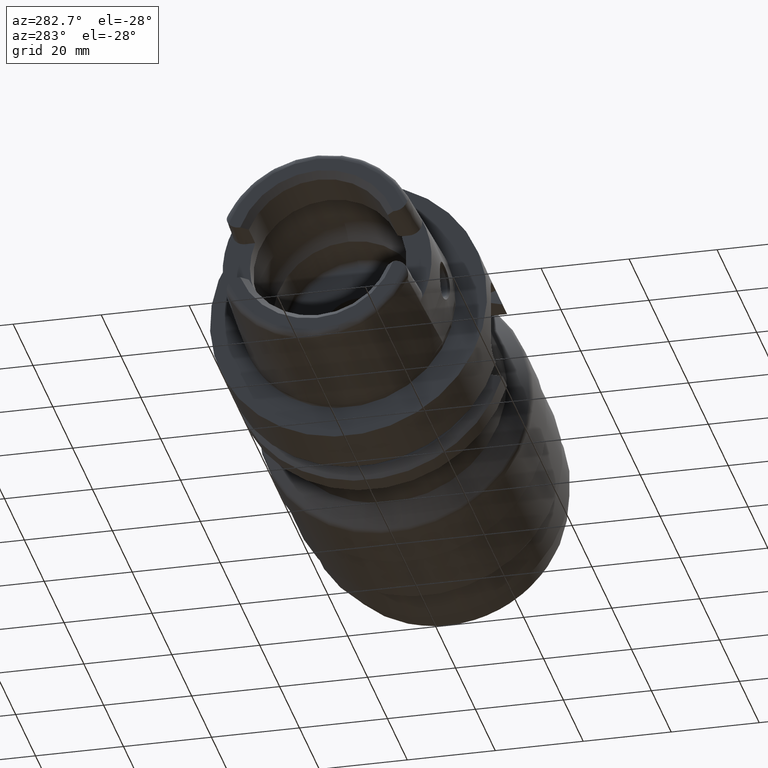
[diagram: clean part render]
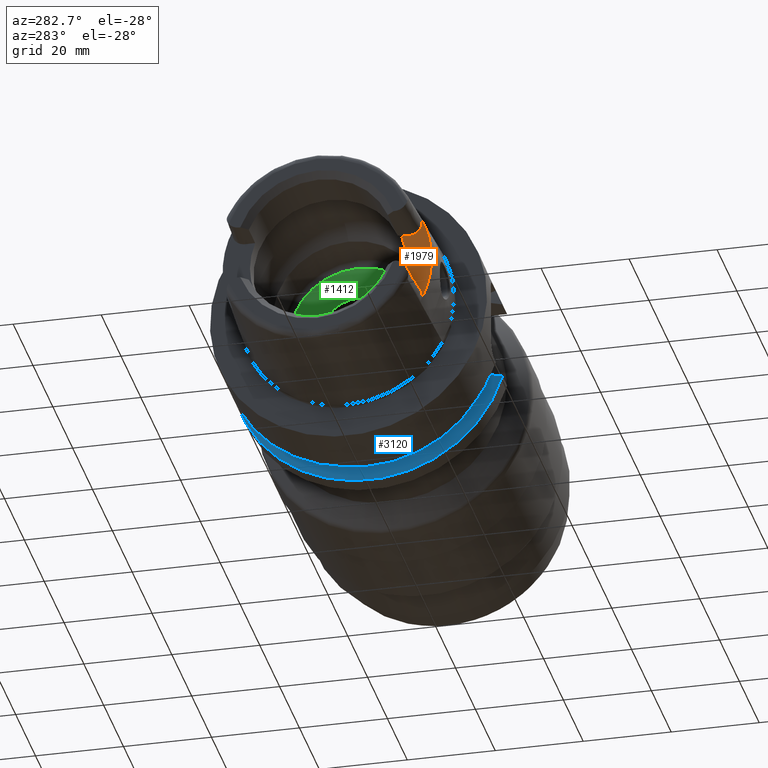
[diagram: same view with three faces highlighted in distinct colors, each labeled with its STEP entity id]
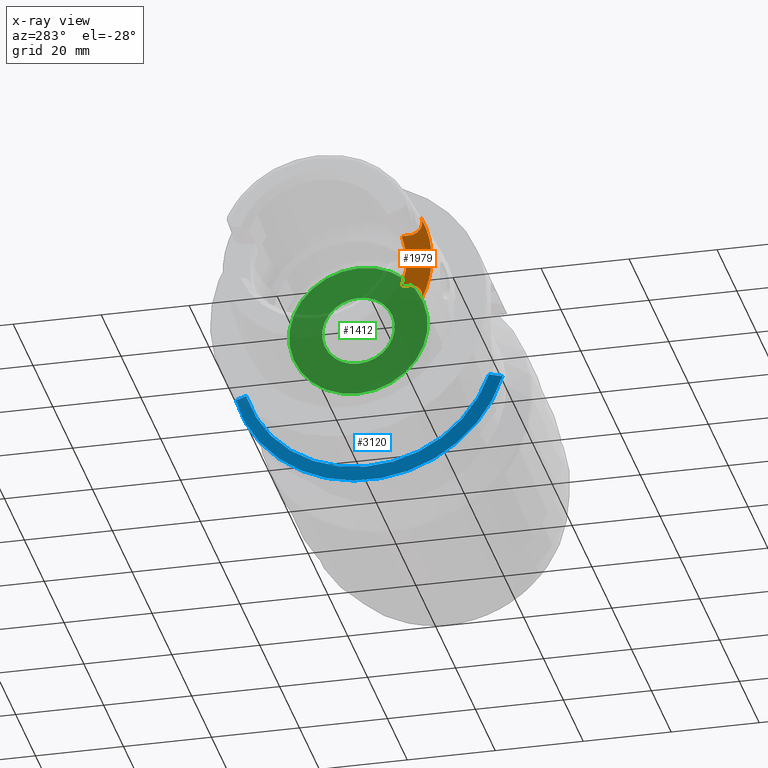
[diagram: x-ray of the same camera — body ghosted, the three highlighted faces saturated]
A machine part, auxiliary view with three faces highlighted in distinct colors.
The next image is the same camera in x-ray (body ghosted, the three faces saturated) — at least one of them is partly hidden behind the body in this view.
Their STEP definitions:

[orange] entity #1979 — the highlighted planar face has unit normal (-1, 0, 0).
#2 = AXIS2_PLACEMENT_3D ( 'NONE', #1925, #3089, #1618 ) ;
#40 = VECTOR ( 'NONE', #2176, 1000.000000000000000 ) ;
#59 = CARTESIAN_POINT ( 'NONE',  ( 12.00000000000000000, -18.36301340108916600, 6.269999999999999600 ) ) ;
#76 = CARTESIAN_POINT ( 'NONE',  ( 11.99999999999999800, -20.53071144832858200, -7.234431962286787000 ) ) ;
#86 = CARTESIAN_POINT ( 'NONE',  ( 12.00000000000000200, -19.55300159179155300, -6.515311287649342200 ) ) ;
#101 = CARTESIAN_POINT ( 'NONE',  ( 12.00000000000000400, -18.60939501637432500, 6.270000000000000500 ) ) ;
#341 = EDGE_CURVE ( 'NONE', #399, #3340, #3214, .T. ) ;
#388 = EDGE_CURVE ( 'NONE', #2680, #2763, #3370, .T. ) ;
#399 = VERTEX_POINT ( 'NONE', #3316 ) ;
#400 = CARTESIAN_POINT ( 'NONE',  ( 11.99999999999999800, -20.68413609072527100, 7.422551300769880500 ) ) ;
#410 = CARTESIAN_POINT ( 'NONE',  ( 11.99999999999999800, -21.23292727320523100, 8.772358841686422400 ) ) ;
#426 = CARTESIAN_POINT ( 'NONE',  ( 12.00000000000000200, -20.17780074119544800, -6.898224994547672600 ) ) ;
#485 = CARTESIAN_POINT ( 'NONE',  ( 12.00000000000000000, -16.58478030430917400, -6.269999999999999600 ) ) ;
#671 = CARTESIAN_POINT ( 'NONE',  ( 12.00000000000000200, -21.25573649662585800, 9.257612388113729600 ) ) ;
#688 = CARTESIAN_POINT ( 'NONE',  ( 12.00000000000000200, -21.23296973657176400, -8.772682089398991000 ) ) ;
#696 = VERTEX_POINT ( 'NONE', #485 ) ;
#699 = ORIENTED_EDGE ( 'NONE', *, *, #341, .T. ) ;
#831 = VERTEX_POINT ( 'NONE', #1784 ) ;
#903 = ORIENTED_EDGE ( 'NONE', *, *, #1464, .T. ) ;
#938 = CARTESIAN_POINT ( 'NONE',  ( 11.99999999999999800, -19.55259490983903700, 6.515125839770863800 ) ) ;
#948 = CARTESIAN_POINT ( 'NONE',  ( 12.00000000000000000, -18.36301340108916600, 6.269999999999999600 ) ) ;
#967 = CARTESIAN_POINT ( 'NONE',  ( 12.00000000000000000, -18.36301340108916600, -6.269999999999999600 ) ) ;
#984 = CARTESIAN_POINT ( 'NONE',  ( 12.00000000000000200, -20.94396221280171500, 7.840666298896443300 ) ) ;
#1145 = CARTESIAN_POINT ( 'NONE',  ( 12.00000000000000000, 0.0000000000000000000, 0.0000000000000000000 ) ) ;
#1248 = CARTESIAN_POINT ( 'NONE',  ( 11.99999999999999800, -18.60939450956534100, -6.269999999999999600 ) ) ;
#1272 = CARTESIAN_POINT ( 'NONE',  ( 12.00000000000000200, -19.32173134252615300, 6.422874775357647600 ) ) ;
#1438 = DIRECTION ( 'NONE',  ( 0.0000000000000000000, 0.0000000000000000000, 1.000000000000000000 ) ) ;
#1464 = EDGE_CURVE ( 'NONE', #2763, #399, #3393, .T. ) ;
#1489 = ORIENTED_EDGE ( 'NONE', *, *, #1801, .T. ) ;
#1518 = CARTESIAN_POINT ( 'NONE',  ( 12.00000000000000200, -20.68446546619762900, -7.422969488132082500 ) ) ;
#1545 = EDGE_CURVE ( 'NONE', #2680, #696, #1944, .T. ) ;
#1565 = CARTESIAN_POINT ( 'NONE',  ( 12.00000000000000400, -21.05561976531842900, -10.21183550163596900 ) ) ;
#1583 = CARTESIAN_POINT ( 'NONE',  ( 12.00000000000000200, -21.13518994756639600, -9.982258600522914800 ) ) ;
#1618 = DIRECTION ( 'NONE',  ( 0.0000000000000000000, 0.0000000000000000000, 1.000000000000000000 ) ) ;
#1719 = ORIENTED_EDGE ( 'NONE', *, *, #388, .T. ) ;
#1784 = CARTESIAN_POINT ( 'NONE',  ( 12.00000000000000000, -16.58478030430917400, 6.269999999999999600 ) ) ;
#1801 = EDGE_CURVE ( 'NONE', #831, #696, #2383, .T. ) ;
#1830 = AXIS2_PLACEMENT_3D ( 'NONE', #1145, #3176, #1438 ) ;
#1847 = CARTESIAN_POINT ( 'NONE',  ( 12.00000000000000200, -19.32247162561315100, -6.423106612030112600 ) ) ;
#1925 = CARTESIAN_POINT ( 'NONE',  ( 12.00000000000000000, 0.0000000000000000000, 0.0000000000000000000 ) ) ;
#1940 = FACE_OUTER_BOUND ( 'NONE', #3223, .T. ) ;
#1944 = LINE ( 'NONE', #2770, #40 ) ;
#1967 = DIRECTION ( 'NONE',  ( 0.0000000000000000000, 1.000000000000000000, 0.0000000000000000000 ) ) ;
#1979 = ADVANCED_FACE ( 'NONE', ( #1940 ), #3191, .T. ) ;
#2010 = EDGE_CURVE ( 'NONE', #3340, #831, #2988, .T. ) ;
#2105 = CARTESIAN_POINT ( 'NONE',  ( 12.00000000000000000, -18.36301340108916600, -6.269999999999999600 ) ) ;
#2142 = CARTESIAN_POINT ( 'NONE',  ( 12.00000000000000200, -21.23588942728140300, 9.505079572619866500 ) ) ;
#2148 = CARTESIAN_POINT ( 'NONE',  ( 12.00000000000000000, -20.94577213106061100, -10.43238370813136300 ) ) ;
#2172 = CARTESIAN_POINT ( 'NONE',  ( 11.99999999999999800, -21.25572429972871900, -9.257933813955691700 ) ) ;
#2176 = DIRECTION ( 'NONE',  ( 0.0000000000000000000, 1.000000000000000000, 0.0000000000000000000 ) ) ;
#2180 = DIRECTION ( 'NONE',  ( 0.0000000000000000000, 0.0000000000000000000, 1.000000000000000000 ) ) ;
#2206 = DIRECTION ( 'NONE',  ( 1.000000000000000000, -0.0000000000000000000, -0.0000000000000000000 ) ) ;
#2375 = CARTESIAN_POINT ( 'NONE',  ( 11.99999999999999800, -19.97765256619633700, -6.751187422122037600 ) ) ;
#2383 = CIRCLE ( 'NONE', #2399, 17.73042125112095500 ) ;
#2389 = CARTESIAN_POINT ( 'NONE',  ( 12.00000000000000200, -21.04513730628684000, -8.062609518537772900 ) ) ;
#2399 = AXIS2_PLACEMENT_3D ( 'NONE', #3632, #2206, #2180 ) ;
#2401 = CARTESIAN_POINT ( 'NONE',  ( 12.00000000000000200, -18.85033868554397800, 6.301009723774567000 ) ) ;
#2413 = CARTESIAN_POINT ( 'NONE',  ( 11.99999999999999800, -21.05562004604616900, 10.21183493800068500 ) ) ;
#2674 = CARTESIAN_POINT ( 'NONE',  ( 12.00000000000000200, -21.18990613798611000, 8.527671104674306300 ) ) ;
#2680 = VERTEX_POINT ( 'NONE', #2105 ) ;
#2711 = CARTESIAN_POINT ( 'NONE',  ( 11.99999999999999800, -21.04502711057990500, 8.062371556099122900 ) ) ;
#2763 = VERTEX_POINT ( 'NONE', #3323 ) ;
#2770 = CARTESIAN_POINT ( 'NONE',  ( 12.00000000000000000, 0.0000000000000000000, -6.269999999999999600 ) ) ;
#2785 = ORIENTED_EDGE ( 'NONE', *, *, #2010, .T. ) ;
#2804 = CARTESIAN_POINT ( 'NONE',  ( 12.00000000000000000, 0.0000000000000000000, 6.269999999999999600 ) ) ;
#2988 = LINE ( 'NONE', #2804, #3065 ) ;
#3005 = CARTESIAN_POINT ( 'NONE',  ( 12.00000000000000200, -20.53053151178566800, 7.234202413463278500 ) ) ;
#3065 = VECTOR ( 'NONE', #1967, 1000.000000000000000 ) ;
#3089 = DIRECTION ( 'NONE',  ( -1.000000000000000000, 0.0000000000000000000, 0.0000000000000000000 ) ) ;
#3176 = DIRECTION ( 'NONE',  ( -1.000000000000000000, 0.0000000000000000000, 0.0000000000000000000 ) ) ;
#3191 = PLANE ( 'NONE',  #1830 ) ;
#3214 = B_SPLINE_CURVE_WITH_KNOTS ( 'NONE', 3,
 ( #3582, #2413, #3569, #2142, #671, #410, #2674, #2711, #984, #400, #3005, #3553, #3255, #938, #1272, #2401, #101, #948 ),
 .UNSPECIFIED., .F., .F.,
 ( 4, 2, 2, 2, 2, 2, 2, 2, 4 ),
 ( 0.0000000000000000000, 0.0007286863769351804200, 0.001457372753870360800, 0.002186059130805541500, 0.002914745507740721700, 0.003643431884675901900, 0.004372118261611083000, 0.005100804638546263200, 0.005829491015481443400 ),
 .UNSPECIFIED. ) ;
#3223 = EDGE_LOOP ( 'NONE', ( #903, #699, #2785, #1489, #3307, #1719 ) ) ;
#3255 = CARTESIAN_POINT ( 'NONE',  ( 12.00000000000000200, -19.97732540815814800, 6.750965321922311800 ) ) ;
#3279 = CARTESIAN_POINT ( 'NONE',  ( 11.99999999999999800, -21.19003790503615300, -8.528210433685437400 ) ) ;
#3307 = ORIENTED_EDGE ( 'NONE', *, *, #1545, .F. ) ;
#3316 = CARTESIAN_POINT ( 'NONE',  ( 12.00000000000000000, -20.94577213106061500, 10.43238370813136500 ) ) ;
#3323 = CARTESIAN_POINT ( 'NONE',  ( 12.00000000000000000, -20.94577213106061100, -10.43238370813136300 ) ) ;
#3324 = CARTESIAN_POINT ( 'NONE',  ( 12.00000000000000200, -21.23579885899954400, -9.505650799358576800 ) ) ;
#3340 = VERTEX_POINT ( 'NONE', #59 ) ;
#3370 = B_SPLINE_CURVE_WITH_KNOTS ( 'NONE', 3,
 ( #967, #1248, #3595, #1847, #86, #2375, #426, #76, #1518, #3561, #2389, #3279, #688, #2172, #3324, #1583, #1565, #2148 ),
 .UNSPECIFIED., .F., .F.,
 ( 4, 2, 2, 2, 2, 2, 2, 2, 4 ),
 ( 0.0000000000000000000, 0.0007286587998835816500, 0.001457317599767163300, 0.002185976399650744900, 0.002914635199534326600, 0.003643293999417908400, 0.004371952799301489700, 0.005100611599185071900, 0.005829270399068653200 ),
 .UNSPECIFIED. ) ;
#3393 = CIRCLE ( 'NONE', #2, 23.40000000000000600 ) ;
#3553 = CARTESIAN_POINT ( 'NONE',  ( 11.99999999999999800, -20.17725965364653000, 6.897767765092852200 ) ) ;
#3561 = CARTESIAN_POINT ( 'NONE',  ( 11.99999999999999800, -20.94436222947234300, -7.841422171513864100 ) ) ;
#3569 = CARTESIAN_POINT ( 'NONE',  ( 12.00000000000000200, -21.13524235319293600, 9.982152324843793800 ) ) ;
#3582 = CARTESIAN_POINT ( 'NONE',  ( 12.00000000000000000, -20.94577213106061500, 10.43238370813136500 ) ) ;
#3595 = CARTESIAN_POINT ( 'NONE',  ( 12.00000000000000200, -18.85049619370726500, -6.301010062164468000 ) ) ;
#3632 = CARTESIAN_POINT ( 'NONE',  ( 12.00000000000000000, 0.0000000000000000000, 0.0000000000000000000 ) ) ;

[blue] entity #3120 — the highlighted conical surface has half-angle 60 deg.
#127 = VERTEX_POINT ( 'NONE', #2567 ) ;
#159 = ORIENTED_EDGE ( 'NONE', *, *, #3518, .T. ) ;
#176 = CARTESIAN_POINT ( 'NONE',  ( 51.87500000000000700, 27.76816544269770400, -8.000000000000001800 ) ) ;
#187 = FACE_OUTER_BOUND ( 'NONE', #243, .T. ) ;
#205 = CARTESIAN_POINT ( 'NONE',  ( 52.87547374414030800, 29.56818586551383300, -8.000000000000001800 ) ) ;
#243 = EDGE_LOOP ( 'NONE', ( #3538, #159, #1767, #2862 ) ) ;
#318 = DIRECTION ( 'NONE',  ( 0.0000000000000000000, 0.0000000000000000000, -1.000000000000000000 ) ) ;
#463 = CIRCLE ( 'NONE', #1736, 31.50000000000000000 ) ;
#475 = CARTESIAN_POINT ( 'NONE',  ( 52.37452812011299800, 28.66856460942900500, -8.000000000000001800 ) ) ;
#506 = CONICAL_SURFACE ( 'NONE', #2752, 31.50000000000000000, 1.047197551196602300 ) ;
#519 = CARTESIAN_POINT ( 'NONE',  ( 53.37749907475930700, -30.18691769624715700, -9.000000000000007100 ) ) ;
#575 = DIRECTION ( 'NONE',  ( -1.000000000000000000, -0.0000000000000000000, -0.0000000000000000000 ) ) ;
#756 = CARTESIAN_POINT ( 'NONE',  ( 53.37749907475930700, 0.0000000000000000000, 0.0000000000000000000 ) ) ;
#780 = EDGE_CURVE ( 'NONE', #1117, #127, #2246, .T. ) ;
#801 = CARTESIAN_POINT ( 'NONE',  ( 51.87500000000000700, 0.0000000000000000000, 0.0000000000000000000 ) ) ;
#1117 = VERTEX_POINT ( 'NONE', #3028 ) ;
#1125 = CARTESIAN_POINT ( 'NONE',  ( 52.87511592117055400, -29.27891428885710900, -9.000000000000007100 ) ) ;
#1326 = DIRECTION ( 'NONE',  ( -1.000000000000000000, -0.0000000000000000000, -0.0000000000000000000 ) ) ;
#1736 = AXIS2_PLACEMENT_3D ( 'NONE', #756, #1326, #3651 ) ;
#1745 = DIRECTION ( 'NONE',  ( 1.000000000000000000, 0.0000000000000000000, 0.0000000000000000000 ) ) ;
#1767 = ORIENTED_EDGE ( 'NONE', *, *, #3469, .T. ) ;
#1958 = CARTESIAN_POINT ( 'NONE',  ( 51.87500000000000700, -27.46035345826835100, -9.000000000000007100 ) ) ;
#2197 = CARTESIAN_POINT ( 'NONE',  ( 53.37749907475930700, 30.46719547316424600, -8.000000000000001800 ) ) ;
#2246 = CIRCLE ( 'NONE', #3084, 28.89759526419163600 ) ;
#2258 = CARTESIAN_POINT ( 'NONE',  ( 53.37749907475930700, -30.18691769624715700, -9.000000000000007100 ) ) ;
#2567 = CARTESIAN_POINT ( 'NONE',  ( 51.87500000000000700, -27.46035345826835100, -9.000000000000007100 ) ) ;
#2610 = B_SPLINE_CURVE_WITH_KNOTS ( 'NONE', 3,
 ( #176, #475, #205, #2197 ),
 .UNSPECIFIED., .F., .F.,
 ( 4, 4 ),
 ( 0.009170578567215535400, 0.01225957503950663900 ),
 .UNSPECIFIED. ) ;
#2752 = AXIS2_PLACEMENT_3D ( 'NONE', #3437, #1745, #318 ) ;
#2817 = CARTESIAN_POINT ( 'NONE',  ( 53.37749907475930700, 30.46719547316424600, -8.000000000000001800 ) ) ;
#2862 = ORIENTED_EDGE ( 'NONE', *, *, #3101, .T. ) ;
#3006 = VERTEX_POINT ( 'NONE', #2817 ) ;
#3028 = CARTESIAN_POINT ( 'NONE',  ( 51.87500000000000700, 27.76816544269770400, -8.000000000000001800 ) ) ;
#3041 = VERTEX_POINT ( 'NONE', #2258 ) ;
#3084 = AXIS2_PLACEMENT_3D ( 'NONE', #801, #575, #3743 ) ;
#3101 = EDGE_CURVE ( 'NONE', #3041, #127, #3637, .T. ) ;
#3120 = ADVANCED_FACE ( 'NONE', ( #187 ), #506, .T. ) ;
#3143 = CARTESIAN_POINT ( 'NONE',  ( 52.37413581659258500, -28.37013043721124500, -9.000000000000007100 ) ) ;
#3437 = CARTESIAN_POINT ( 'NONE',  ( 53.37749907475930700, 0.0000000000000000000, 0.0000000000000000000 ) ) ;
#3469 = EDGE_CURVE ( 'NONE', #3006, #3041, #463, .T. ) ;
#3518 = EDGE_CURVE ( 'NONE', #1117, #3006, #2610, .T. ) ;
#3538 = ORIENTED_EDGE ( 'NONE', *, *, #780, .F. ) ;
#3637 = B_SPLINE_CURVE_WITH_KNOTS ( 'NONE', 3,
 ( #519, #1125, #3143, #1958 ),
 .UNSPECIFIED., .F., .F.,
 ( 4, 4 ),
 ( 0.009210654527293046400, 0.01232379170701143400 ),
 .UNSPECIFIED. ) ;
#3651 = DIRECTION ( 'NONE',  ( 0.0000000000000000000, 0.0000000000000000000, 1.000000000000000000 ) ) ;
#3743 = DIRECTION ( 'NONE',  ( 0.0000000000000000000, 0.0000000000000000000, 1.000000000000000000 ) ) ;

[green] entity #1412 — the highlighted planar face has unit normal (1, 0, 0).
#150 = PLANE ( 'NONE',  #1799 ) ;
#170 = DIRECTION ( 'NONE',  ( 0.0000000000000000000, 0.0000000000000000000, -1.000000000000000000 ) ) ;
#280 = CIRCLE ( 'NONE', #3161, 8.249999999999998200 ) ;
#320 = AXIS2_PLACEMENT_3D ( 'NONE', #1818, #1493, #2964 ) ;
#371 = EDGE_CURVE ( 'NONE', #2349, #2349, #280, .T. ) ;
#817 = VERTEX_POINT ( 'NONE', #1111 ) ;
#1025 = DIRECTION ( 'NONE',  ( 1.000000000000000000, 0.0000000000000000000, 0.0000000000000000000 ) ) ;
#1111 = CARTESIAN_POINT ( 'NONE',  ( 42.00000000000000700, 0.0000000000000000000, 15.75000000000000000 ) ) ;
#1217 = ORIENTED_EDGE ( 'NONE', *, *, #371, .F. ) ;
#1299 = FACE_OUTER_BOUND ( 'NONE', #2557, .T. ) ;
#1394 = CARTESIAN_POINT ( 'NONE',  ( 42.00000000000000700, 0.0000000000000000000, 8.249999999999998200 ) ) ;
#1412 = ADVANCED_FACE ( 'NONE', ( #3661, #1299 ), #150, .F. ) ;
#1493 = DIRECTION ( 'NONE',  ( -1.000000000000000000, -0.0000000000000000000, -0.0000000000000000000 ) ) ;
#1556 = DIRECTION ( 'NONE',  ( 0.0000000000000000000, 0.0000000000000000000, 1.000000000000000000 ) ) ;
#1799 = AXIS2_PLACEMENT_3D ( 'NONE', #3628, #1025, #170 ) ;
#1805 = CARTESIAN_POINT ( 'NONE',  ( 42.00000000000000700, 0.0000000000000000000, 0.0000000000000000000 ) ) ;
#1818 = CARTESIAN_POINT ( 'NONE',  ( 42.00000000000000700, 0.0000000000000000000, 0.0000000000000000000 ) ) ;
#1856 = CIRCLE ( 'NONE', #320, 15.75000000000000000 ) ;
#2349 = VERTEX_POINT ( 'NONE', #1394 ) ;
#2557 = EDGE_LOOP ( 'NONE', ( #3654 ) ) ;
#2602 = EDGE_CURVE ( 'NONE', #817, #817, #1856, .T. ) ;
#2964 = DIRECTION ( 'NONE',  ( 0.0000000000000000000, 0.0000000000000000000, 1.000000000000000000 ) ) ;
#3161 = AXIS2_PLACEMENT_3D ( 'NONE', #1805, #3296, #1556 ) ;
#3198 = EDGE_LOOP ( 'NONE', ( #1217 ) ) ;
#3296 = DIRECTION ( 'NONE',  ( -1.000000000000000000, -0.0000000000000000000, -0.0000000000000000000 ) ) ;
#3628 = CARTESIAN_POINT ( 'NONE',  ( 42.00000000000000700, 15.75000000000000000, 0.0000000000000000000 ) ) ;
#3654 = ORIENTED_EDGE ( 'NONE', *, *, #2602, .T. ) ;
#3661 = FACE_BOUND ( 'NONE', #3198, .T. ) ;